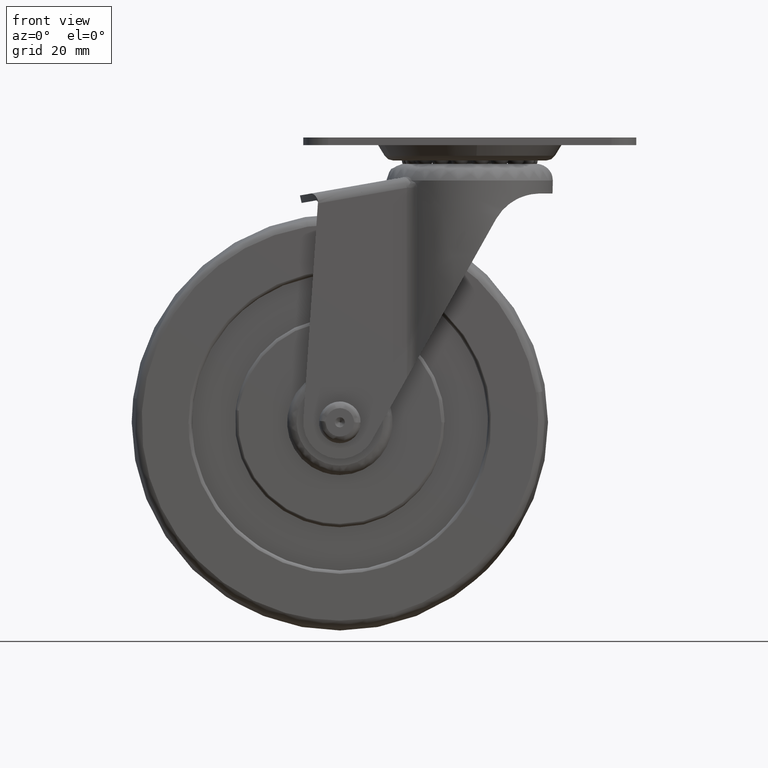
[diagram: clean part render]
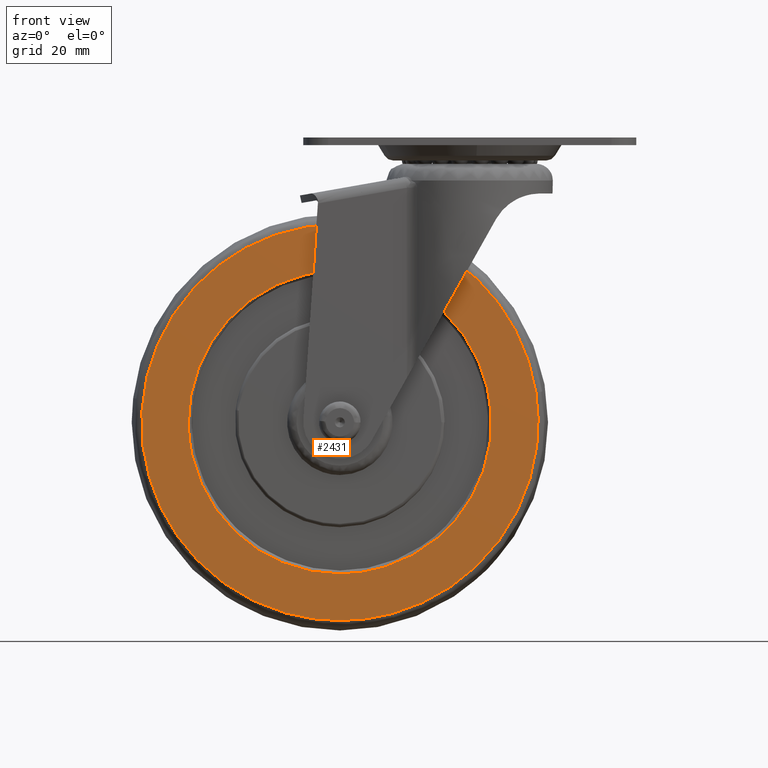
[diagram: same view with one face highlighted and labeled with its STEP entity id]
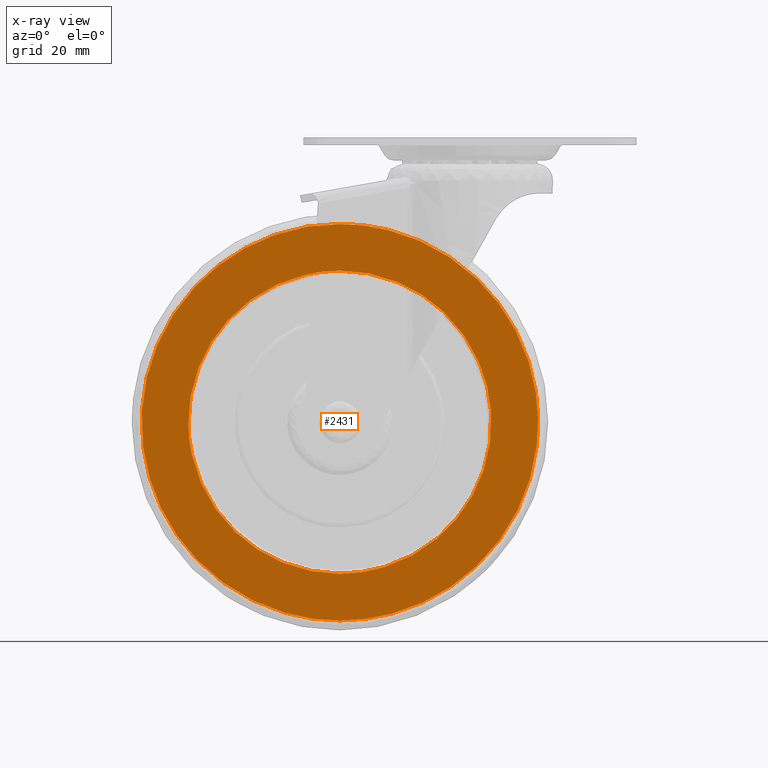
[diagram: x-ray of the same camera — body ghosted, the highlighted face saturated]
A machine part, front view. The second image highlights one B-rep face of the part: STEP entity #2431.
The next image is the same camera in x-ray: the body ghosted, the highlighted face saturated — about 0% of this face is hidden behind the body in this view.
In plain terms, the highlighted face is a freeform B-spline surface patch.
Its self-contained STEP definition (entity closure, byte-faithful):
#1057=CARTESIAN_POINT('',(45.389238144940521,-13.499999999999680,3.172862945959057));
#1058=VERTEX_POINT('',#1057);
#1059=CARTESIAN_POINT('',(0.0,-13.499999999999680,-45.500000000000000));
#1060=VERTEX_POINT('',#1059);
#1061=CARTESIAN_POINT('',(45.389238144940514,-13.499999999999677,3.172862945959057));
#1062=CARTESIAN_POINT('',(45.500000000000007,-13.499999999999678,1.588364772609953));
#1063=CARTESIAN_POINT('',(45.500000000000000,-13.499999999999680,1.855278E-015));
#1064=CARTESIAN_POINT('',(45.500000000000014,-13.499999999999680,-45.500000000000014));
#1065=CARTESIAN_POINT('',(0.0,-13.499999999999680,-45.500000000000000));
#1073=(BOUNDED_CURVE()B_SPLINE_CURVE(2,(#1061,#1062,#1063,#1064,#1065),.UNSPECIFIED.,.F.,.U.)B_SPLINE_CURVE_WITH_KNOTS((3,2,3),(0.237833686532790,0.250000000000000,0.500000000000000),.UNSPECIFIED.)CURVE()GEOMETRIC_REPRESENTATION_ITEM()RATIONAL_B_SPLINE_CURVE((0.972879876382107,0.985746277149981,1.0,0.707106781186548,1.0))REPRESENTATION_ITEM(''));
#1074=EDGE_CURVE('',#1058,#1060,#1073,.T.);
#1092=CARTESIAN_POINT('',(-45.496407473654571,-13.499999999999680,-0.571754815031597));
#1093=VERTEX_POINT('',#1092);
#1107=CARTESIAN_POINT('',(0.0,-13.499999999999680,-45.500000000000000));
#1108=CARTESIAN_POINT('',(-44.931792809179740,-13.499999999999680,-45.500000000000000));
#1109=CARTESIAN_POINT('',(-45.496407473654578,-13.499999999999678,-0.571754815031597));
#1117=(BOUNDED_CURVE()B_SPLINE_CURVE(2,(#1107,#1108,#1109),.UNSPECIFIED.,.F.,.U.)B_SPLINE_CURVE_WITH_KNOTS((3,3),(0.500000000000000,0.747784295915454),.UNSPECIFIED.)CURVE()GEOMETRIC_REPRESENTATION_ITEM()RATIONAL_B_SPLINE_CURVE((1.0,0.709702639991591,0.994854295629572))REPRESENTATION_ITEM(''));
#1118=EDGE_CURVE('',#1060,#1093,#1117,.T.);
#1146=CARTESIAN_POINT('',(0.0,-13.499999999999680,45.500000000000000));
#1147=VERTEX_POINT('',#1146);
#1148=CARTESIAN_POINT('',(0.0,-13.499999999999680,45.500000000000000));
#1149=CARTESIAN_POINT('',(42.430426550051251,-13.499999999999682,45.500000000000000));
#1150=CARTESIAN_POINT('',(45.389238144940514,-13.499999999999677,3.172862945959057));
#1158=(BOUNDED_CURVE()B_SPLINE_CURVE(2,(#1148,#1149,#1150),.UNSPECIFIED.,.F.,.U.)B_SPLINE_CURVE_WITH_KNOTS((3,3),(0.0,0.237833686532790),.UNSPECIFIED.)CURVE()GEOMETRIC_REPRESENTATION_ITEM()RATIONAL_B_SPLINE_CURVE((1.0,0.721360504036566,0.972879876382107))REPRESENTATION_ITEM(''));
#1159=EDGE_CURVE('',#1147,#1058,#1158,.T.);
#1161=CARTESIAN_POINT('',(-45.496407473654571,-13.499999999999682,-0.571754815031597));
#1162=CARTESIAN_POINT('',(-45.500000000000007,-13.499999999999678,-0.285888694442762));
#1163=CARTESIAN_POINT('',(-45.500000000000000,-13.499999999999680,1.855278E-015));
#1164=CARTESIAN_POINT('',(-45.500000000000014,-13.499999999999680,45.500000000000014));
#1165=CARTESIAN_POINT('',(0.0,-13.499999999999680,45.500000000000000));
#1173=(BOUNDED_CURVE()B_SPLINE_CURVE(2,(#1161,#1162,#1163,#1164,#1165),.UNSPECIFIED.,.F.,.U.)B_SPLINE_CURVE_WITH_KNOTS((3,2,3),(0.747784295915453,0.750000000000000,1.0),.UNSPECIFIED.)CURVE()GEOMETRIC_REPRESENTATION_ITEM()RATIONAL_B_SPLINE_CURVE((0.994854295629569,0.997404141194956,1.0,0.707106781186548,1.0))REPRESENTATION_ITEM(''));
#1174=EDGE_CURVE('',#1093,#1147,#1173,.T.);
#1411=CARTESIAN_POINT('',(15.676201826861680,-13.499999999999311,-57.419066612171449));
#1412=VERTEX_POINT('',#1411);
#1413=CARTESIAN_POINT('',(58.845067721411681,-13.499999999999300,8.941505452486659));
#1414=VERTEX_POINT('',#1413);
#1415=CARTESIAN_POINT('',(15.676201826861682,-13.499999999999307,-57.419066612171463));
#1416=CARTESIAN_POINT('',(59.520521745329305,-13.499999999999337,-45.448958922673263));
#1417=CARTESIAN_POINT('',(59.520521745329312,-13.499999999999339,1.855278E-015));
#1418=CARTESIAN_POINT('',(59.520521745329290,-13.499999999999346,4.496265104936464));
#1419=CARTESIAN_POINT('',(58.845067721411681,-13.499999999999300,8.941505452486659));
#1427=(BOUNDED_CURVE()B_SPLINE_CURVE(2,(#1415,#1416,#1417,#1418,#1419),.UNSPECIFIED.,.F.,.U.)B_SPLINE_CURVE_WITH_KNOTS((3,2,3),(0.044901926753915,0.250000000000000,0.275897584628434),.UNSPECIFIED.)CURVE()GEOMETRIC_REPRESENTATION_ITEM()RATIONAL_B_SPLINE_CURVE((0.913685083897435,0.759712660618068,1.0,0.969659092314737,0.945604234425334))REPRESENTATION_ITEM(''));
#1428=EDGE_CURVE('',#1412,#1414,#1427,.T.);
#1513=CARTESIAN_POINT('',(0.0,-13.499999999999339,-59.520521745329312));
#1514=VERTEX_POINT('',#1513);
#1515=CARTESIAN_POINT('',(0.0,-13.499999999999339,-59.520521745329312));
#1516=CARTESIAN_POINT('',(7.978954984312622,-13.499999999999346,-59.520521745329305));
#1517=CARTESIAN_POINT('',(15.676201826861682,-13.499999999999307,-57.419066612171463));
#1525=(BOUNDED_CURVE()B_SPLINE_CURVE(2,(#1515,#1516,#1517),.UNSPECIFIED.,.F.,.U.)B_SPLINE_CURVE_WITH_KNOTS((3,3),(0.0,0.044901926753915),.UNSPECIFIED.)CURVE()GEOMETRIC_REPRESENTATION_ITEM()RATIONAL_B_SPLINE_CURVE((1.0,0.947394120568480,0.913685083897435))REPRESENTATION_ITEM(''));
#1526=EDGE_CURVE('',#1514,#1412,#1525,.T.);
#1528=CARTESIAN_POINT('',(0.0,-13.499999999999339,59.520521745329312));
#1529=VERTEX_POINT('',#1528);
#1530=CARTESIAN_POINT('',(0.0,-13.499999999999339,59.520521745329312));
#1531=CARTESIAN_POINT('',(-59.520521745329319,-13.499999999999343,59.520521745329319));
#1532=CARTESIAN_POINT('',(-59.520521745329312,-13.499999999999339,1.855278E-015));
#1533=CARTESIAN_POINT('',(-59.520521745329319,-13.499999999999343,-59.520521745329319));
#1534=CARTESIAN_POINT('',(0.0,-13.499999999999339,-59.520521745329312));
#1542=(BOUNDED_CURVE()B_SPLINE_CURVE(2,(#1530,#1531,#1532,#1533,#1534),.UNSPECIFIED.,.F.,.U.)B_SPLINE_CURVE_WITH_KNOTS((3,2,3),(0.500000000000000,0.750000000000000,1.0),.UNSPECIFIED.)CURVE()GEOMETRIC_REPRESENTATION_ITEM()RATIONAL_B_SPLINE_CURVE((1.0,0.707106781186548,1.0,0.707106781186548,1.0))REPRESENTATION_ITEM(''));
#1543=EDGE_CURVE('',#1529,#1514,#1542,.T.);
#1545=CARTESIAN_POINT('',(58.845067721411681,-13.499999999999300,8.941505452486659));
#1546=CARTESIAN_POINT('',(51.159588367742110,-13.499999999999341,59.520521745329326));
#1547=CARTESIAN_POINT('',(0.0,-13.499999999999339,59.520521745329312));
#1555=(BOUNDED_CURVE()B_SPLINE_CURVE(2,(#1545,#1546,#1547),.UNSPECIFIED.,.F.,.U.)B_SPLINE_CURVE_WITH_KNOTS((3,3),(0.275897584628434,0.500000000000000),.UNSPECIFIED.)CURVE()GEOMETRIC_REPRESENTATION_ITEM()RATIONAL_B_SPLINE_CURVE((0.945604234425334,0.737447688871811,1.0))REPRESENTATION_ITEM(''));
#1556=EDGE_CURVE('',#1414,#1529,#1555,.T.);
#2414=CARTESIAN_POINT('',(-65.466581857672878,-13.499999999999680,-65.466623871907331));
#2415=CARTESIAN_POINT('',(-65.466581857672878,-13.499999999999680,65.466624936217201));
#2416=CARTESIAN_POINT('',(65.465741796444220,-13.499999999999680,-65.466623871907331));
#2417=CARTESIAN_POINT('',(65.465741796444220,-13.499999999999680,65.466624936217201));
#2418=B_SPLINE_SURFACE_WITH_KNOTS('',1,1,((#2414,#2416),(#2415,#2417)),.UNSPECIFIED.,.F.,.F.,.U.,(2,2),(2,2),(0.0,130.933248808124490),(0.0,130.932323654117110),.UNSPECIFIED.);
#2419=ORIENTED_EDGE('',*,*,#1526,.T.);
#2420=ORIENTED_EDGE('',*,*,#1428,.T.);
#2421=ORIENTED_EDGE('',*,*,#1556,.T.);
#2422=ORIENTED_EDGE('',*,*,#1543,.T.);
#2423=EDGE_LOOP('',(#2419,#2420,#2421,#2422));
#2424=FACE_OUTER_BOUND('',#2423,.T.);
#2425=ORIENTED_EDGE('',*,*,#1118,.T.);
#2426=ORIENTED_EDGE('',*,*,#1174,.T.);
#2427=ORIENTED_EDGE('',*,*,#1159,.T.);
#2428=ORIENTED_EDGE('',*,*,#1074,.T.);
#2429=EDGE_LOOP('',(#2425,#2426,#2427,#2428));
#2430=FACE_BOUND('',#2429,.T.);
#2431=ADVANCED_FACE('',(#2424,#2430),#2418,.F.);